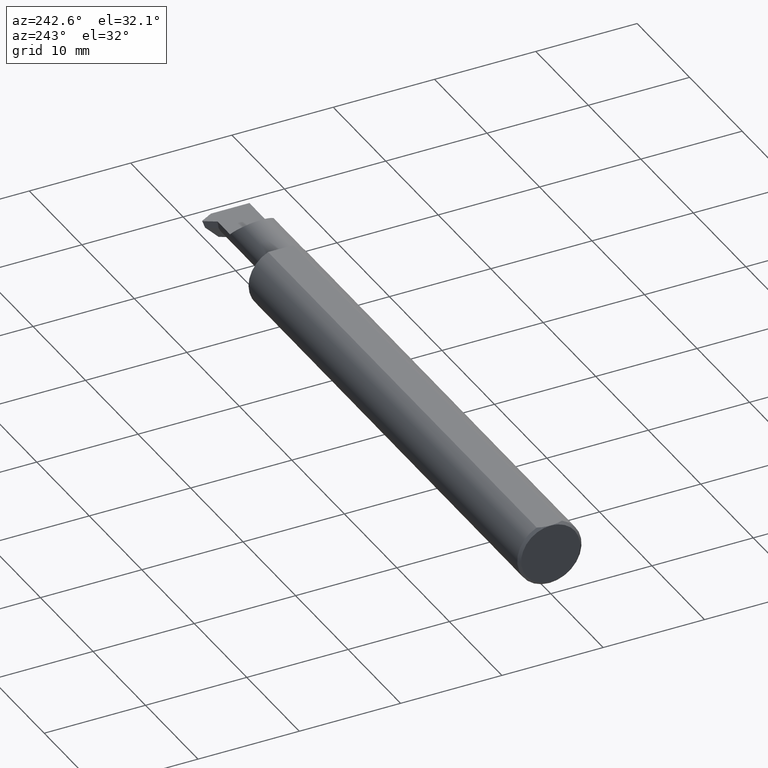
[diagram: clean part render]
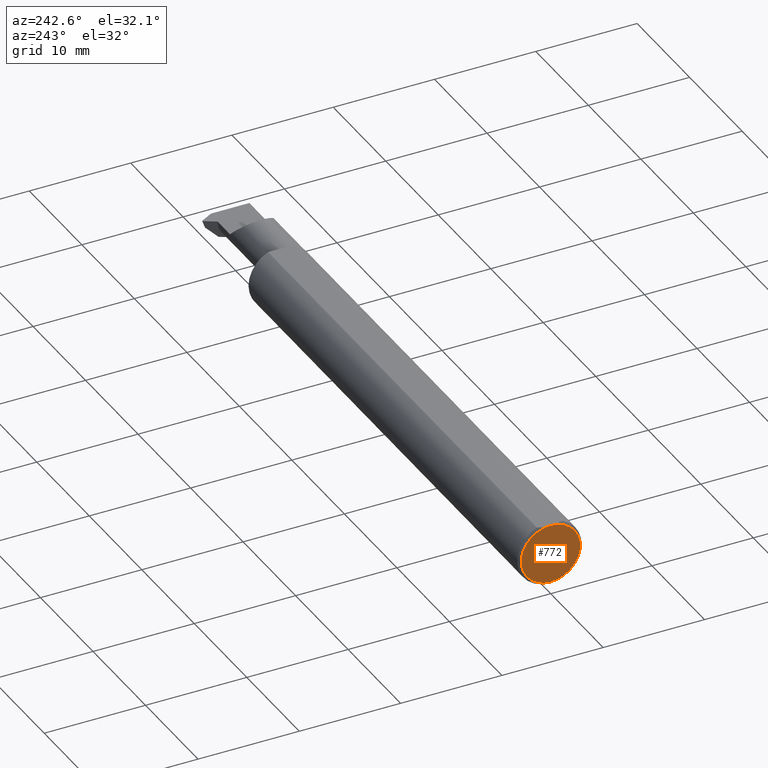
[diagram: same view with one face highlighted and labeled with its STEP entity id]
A machine part, auxiliary view. The second image highlights one B-rep face of the part: STEP entity #772.
In plain terms, the highlighted planar face has unit normal (1, 0, 0).
Its self-contained STEP definition (entity closure, byte-faithful):
#62 = CARTESIAN_POINT ( 'NONE',  ( 0.000000000000000000, 0.000000000000000000, 0.000000000000000000 ) ) ;
#133 = ORIENTED_EDGE ( 'NONE', *, *, #226, .T. ) ;
#152 = ORIENTED_EDGE ( 'NONE', *, *, #724, .T. ) ;
#173 = VERTEX_POINT ( 'NONE', #553 ) ;
#188 = DIRECTION ( 'NONE',  ( -1.000000000000000000, -0.000000000000000000, -0.000000000000000000 ) ) ;
#226 = EDGE_CURVE ( 'NONE', #264, #173, #639, .T. ) ;
#264 = VERTEX_POINT ( 'NONE', #492 ) ;
#320 = PLANE ( 'NONE',  #720 ) ;
#329 = CARTESIAN_POINT ( 'NONE',  ( 0.000000000000000000, 0.000000000000000000, 0.000000000000000000 ) ) ;
#365 = DIRECTION ( 'NONE',  ( 0.000000000000000000, 0.000000000000000000, -1.000000000000000000 ) ) ;
#428 = DIRECTION ( 'NONE',  ( -1.000000000000000000, -0.000000000000000000, -0.000000000000000000 ) ) ;
#436 = DIRECTION ( 'NONE',  ( 0.000000000000000000, 0.000000000000000000, -1.000000000000000000 ) ) ;
#444 = CIRCLE ( 'NONE', #548, 0.1148500000000000076 ) ;
#492 = CARTESIAN_POINT ( 'NONE',  ( 0.000000000000000000, 0.000000000000000000, 0.1148499999999999521 ) ) ;
#548 = AXIS2_PLACEMENT_3D ( 'NONE', #62, #188, #436 ) ;
#553 = CARTESIAN_POINT ( 'NONE',  ( 0.000000000000000000, 0.000000000000000000, -0.1148500000000000076 ) ) ;
#639 = CIRCLE ( 'NONE', #678, 0.1148500000000000076 ) ;
#674 = CARTESIAN_POINT ( 'NONE',  ( 0.000000000000000000, 0.000000000000000000, 0.000000000000000000 ) ) ;
#678 = AXIS2_PLACEMENT_3D ( 'NONE', #674, #428, #365 ) ;
#697 = DIRECTION ( 'NONE',  ( 0.000000000000000000, 0.000000000000000000, -1.000000000000000000 ) ) ;
#704 = EDGE_LOOP ( 'NONE', ( #133, #152 ) ) ;
#720 = AXIS2_PLACEMENT_3D ( 'NONE', #329, #753, #697 ) ;
#724 = EDGE_CURVE ( 'NONE', #173, #264, #444, .T. ) ;
#747 = FACE_OUTER_BOUND ( 'NONE', #704, .T. ) ;
#753 = DIRECTION ( 'NONE',  ( 1.000000000000000000, 0.000000000000000000, 0.000000000000000000 ) ) ;
#772 = ADVANCED_FACE ( 'NONE', ( #747 ), #320, .F. ) ;